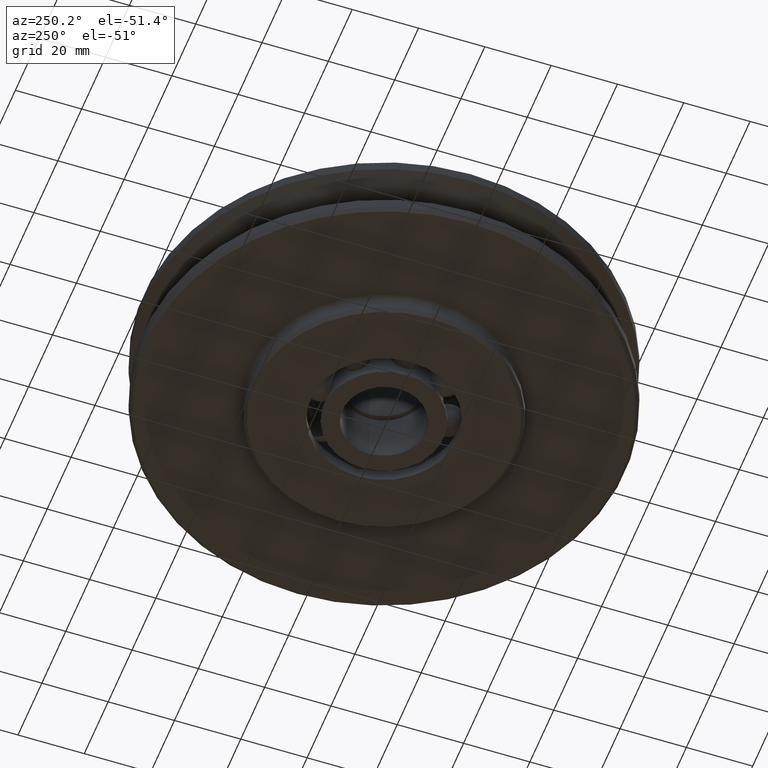
[diagram: clean part render]
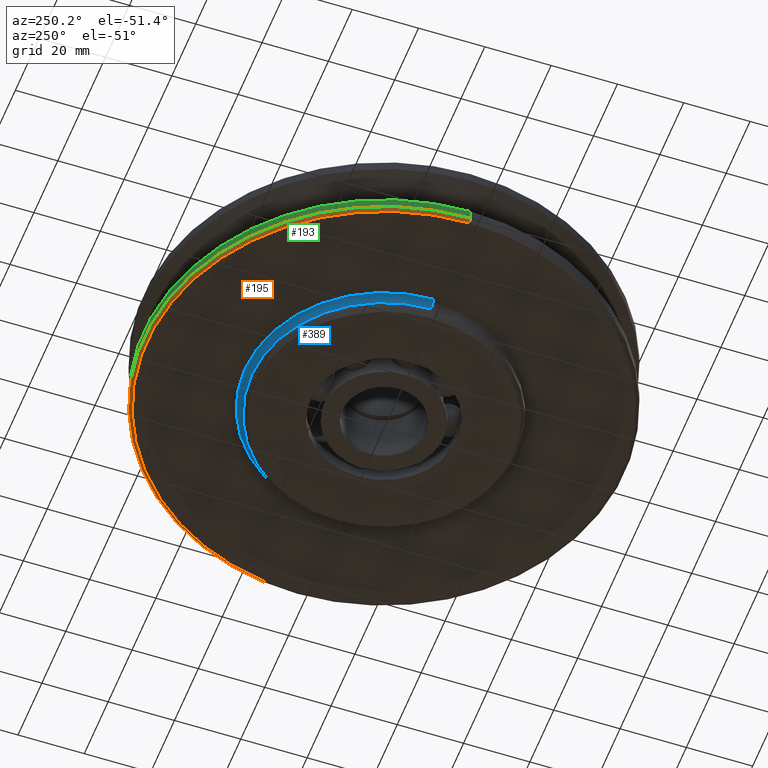
[diagram: same view with three faces highlighted in distinct colors, each labeled with its STEP entity id]
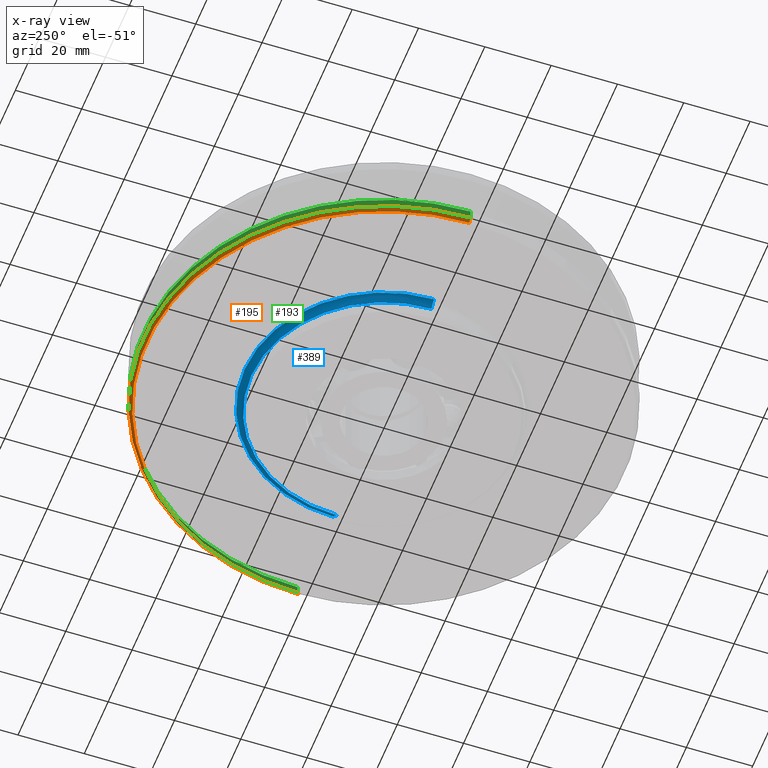
[diagram: x-ray of the same camera — body ghosted, the three highlighted faces saturated]
A machine part, auxiliary view with three faces highlighted in distinct colors.
The next image is the same camera in x-ray (body ghosted, the three faces saturated) — at least one of them is partly hidden behind the body in this view.
Their STEP definitions:

[orange] entity #195 — the highlighted conical surface has half-angle 45 deg.
#195=ADVANCED_FACE('',(#487),#488,.T.);
#487=FACE_OUTER_BOUND('',#897,.T.);
#488=CONICAL_SURFACE('',#898,72.0,0.785398163397448);
#897=EDGE_LOOP('',(#1411,#1412,#1413,#1414));
#898=AXIS2_PLACEMENT_3D('',#1415,#1416,#1417);
#1411=ORIENTED_EDGE('',*,*,#2669,.F.);
#1412=ORIENTED_EDGE('',*,*,#2670,.T.);
#1413=ORIENTED_EDGE('',*,*,#2671,.F.);
#1414=ORIENTED_EDGE('',*,*,#2666,.F.);
#1415=CARTESIAN_POINT('',(0.0,0.0,-10.5));
#1416=DIRECTION('',(-0.0,-0.0,1.0));
#1417=DIRECTION('',(1.0,0.0,0.0));
#2666=EDGE_CURVE('',#3278,#3280,#3281,.T.);
#2669=EDGE_CURVE('',#3284,#3278,#3285,.T.);
#2670=EDGE_CURVE('',#3284,#3286,#3287,.T.);
#2671=EDGE_CURVE('',#3280,#3286,#3288,.T.);
#3278=VERTEX_POINT('',#4803);
#3280=VERTEX_POINT('',#4806);
#3281=CIRCLE('',#4807,72.5);
#3284=VERTEX_POINT('',#4811);
#3285=LINE('',#4812,#4813);
#3286=VERTEX_POINT('',#4814);
#3287=CIRCLE('',#4815,71.5);
#3288=LINE('',#4816,#4817);
#4803=CARTESIAN_POINT('',(72.5,0.0,-10.0));
#4806=CARTESIAN_POINT('',(-72.5,8.87868929381831E-015,-10.0));
#4807=AXIS2_PLACEMENT_3D('',#7975,#7976,#7977);
#4811=CARTESIAN_POINT('',(71.5,0.0,-11.0));
#4812=CARTESIAN_POINT('',(72.0,-8.81745695386094E-015,-10.5));
#4813=VECTOR('',#7979,1.0);
#4814=CARTESIAN_POINT('',(-71.5,8.75622461390357E-015,-11.0));
#4815=AXIS2_PLACEMENT_3D('',#7980,#7981,#7982);
#4816=CARTESIAN_POINT('',(-72.0,8.81745695386094E-015,-10.5));
#4817=VECTOR('',#7983,1.0);
#7975=CARTESIAN_POINT('',(0.0,0.0,-10.0));
#7976=DIRECTION('',(0.0,0.0,1.0));
#7977=DIRECTION('',(1.0,0.0,0.0));
#7979=DIRECTION('',(0.707106781186547,-8.65956056235493E-017,0.707106781186548));
#7980=CARTESIAN_POINT('',(0.0,0.0,-11.0));
#7981=DIRECTION('',(0.0,0.0,1.0));
#7982=DIRECTION('',(1.0,0.0,0.0));
#7983=DIRECTION('',(0.707106781186547,-8.65956056235493E-017,-0.707106781186548));

[blue] entity #389 — the highlighted toroidal blend (fillet) surface has major radius 42 mm and minor (blend) radius 2 mm.
#389=ADVANCED_FACE('',(#801),#802,.F.);
#801=FACE_OUTER_BOUND('',#1211,.T.);
#802=TOROIDAL_SURFACE('',#1212,42.0,2.0);
#1211=EDGE_LOOP('',(#2507,#2508,#2509,#2510));
#1212=AXIS2_PLACEMENT_3D('',#2511,#2512,#2513);
#2507=ORIENTED_EDGE('',*,*,#2673,.T.);
#2508=ORIENTED_EDGE('',*,*,#3091,.F.);
#2509=ORIENTED_EDGE('',*,*,#2675,.T.);
#2510=ORIENTED_EDGE('',*,*,#2681,.T.);
#2511=CARTESIAN_POINT('',(0.0,0.0,-13.0));
#2512=DIRECTION('',(0.0,0.0,1.0));
#2513=DIRECTION('',(1.0,0.0,0.0));
#2673=EDGE_CURVE('',#3290,#3291,#3292,.T.);
#2675=EDGE_CURVE('',#3295,#3293,#3296,.T.);
#2681=EDGE_CURVE('',#3293,#3290,#3304,.T.);
#3091=EDGE_CURVE('',#3295,#3291,#3908,.T.);
#3290=VERTEX_POINT('',#4819);
#3291=VERTEX_POINT('',#4820);
#3292=CIRCLE('',#4821,2.0);
#3293=VERTEX_POINT('',#4822);
#3295=VERTEX_POINT('',#4824);
#3296=CIRCLE('',#4825,2.0);
#3304=CIRCLE('',#4835,40.0);
#3908=CIRCLE('',#7827,42.0);
#4819=CARTESIAN_POINT('',(-40.0,4.89858719658941E-015,-13.0));
#4820=CARTESIAN_POINT('',(-42.0,5.14351655641888E-015,-11.0));
#4821=AXIS2_PLACEMENT_3D('',#7984,#7985,#7986);
#4822=CARTESIAN_POINT('',(40.0,0.0,-13.0));
#4824=CARTESIAN_POINT('',(42.0,0.0,-11.0));
#4825=AXIS2_PLACEMENT_3D('',#7990,#7991,#7992);
#4835=AXIS2_PLACEMENT_3D('',#8001,#8002,#8003);
#7827=AXIS2_PLACEMENT_3D('',#8442,#8443,#8444);
#7984=CARTESIAN_POINT('',(-42.0,5.14351655641888E-015,-13.0));
#7985=DIRECTION('',(-1.22464679914735E-016,-1.0,0.0));
#7986=DIRECTION('',(-1.0,1.22464679914735E-016,-0.0));
#7990=CARTESIAN_POINT('',(42.0,-5.14351655641888E-015,-13.0));
#7991=DIRECTION('',(-1.22464679914735E-016,-1.0,0.0));
#7992=DIRECTION('',(1.0,-1.22464679914735E-016,0.0));
#8001=CARTESIAN_POINT('',(0.0,0.0,-13.0));
#8002=DIRECTION('',(0.0,0.0,1.0));
#8003=DIRECTION('',(1.0,0.0,0.0));
#8442=CARTESIAN_POINT('',(0.0,0.0,-11.0));
#8443=DIRECTION('',(0.0,0.0,1.0));
#8444=DIRECTION('',(1.0,0.0,0.0));

[green] entity #193 — the highlighted cylindrical surface (partial cylindrical patch) has radius 72.5 mm, axis along (0, 0, 1).
#193=ADVANCED_FACE('',(#484),#485,.T.);
#484=FACE_OUTER_BOUND('',#894,.T.);
#485=CYLINDRICAL_SURFACE('',#895,72.5);
#894=EDGE_LOOP('',(#1403,#1404,#1405,#1406));
#895=AXIS2_PLACEMENT_3D('',#1407,#1408,#1409);
#1403=ORIENTED_EDGE('',*,*,#2665,.F.);
#1404=ORIENTED_EDGE('',*,*,#2666,.T.);
#1405=ORIENTED_EDGE('',*,*,#2667,.F.);
#1406=ORIENTED_EDGE('',*,*,#2661,.F.);
#1407=CARTESIAN_POINT('',(0.0,0.0,-8.490876));
#1408=DIRECTION('',(0.0,0.0,1.0));
#1409=DIRECTION('',(1.0,0.0,0.0));
#2661=EDGE_CURVE('',#3271,#3273,#3274,.T.);
#2665=EDGE_CURVE('',#3278,#3271,#3279,.T.);
#2666=EDGE_CURVE('',#3278,#3280,#3281,.T.);
#2667=EDGE_CURVE('',#3273,#3280,#3282,.T.);
#3271=VERTEX_POINT('',#4794);
#3273=VERTEX_POINT('',#4797);
#3274=CIRCLE('',#4798,72.5);
#3278=VERTEX_POINT('',#4803);
#3279=LINE('',#4804,#4805);
#3280=VERTEX_POINT('',#4806);
#3281=CIRCLE('',#4807,72.5);
#3282=LINE('',#4808,#4809);
#4794=CARTESIAN_POINT('',(72.5,0.0,-6.981752));
#4797=CARTESIAN_POINT('',(-72.5,8.87868929381831E-015,-6.981752));
#4798=AXIS2_PLACEMENT_3D('',#7967,#7968,#7969);
#4803=CARTESIAN_POINT('',(72.5,0.0,-10.0));
#4804=CARTESIAN_POINT('',(72.5,-8.87868929381831E-015,-8.490876));
#4805=VECTOR('',#7974,1.0);
#4806=CARTESIAN_POINT('',(-72.5,8.87868929381831E-015,-10.0));
#4807=AXIS2_PLACEMENT_3D('',#7975,#7976,#7977);
#4808=CARTESIAN_POINT('',(-72.5,8.87868929381831E-015,-8.490876));
#4809=VECTOR('',#7978,1.0);
#7967=CARTESIAN_POINT('',(0.0,0.0,-6.981752));
#7968=DIRECTION('',(0.0,0.0,1.0));
#7969=DIRECTION('',(1.0,0.0,0.0));
#7974=DIRECTION('',(0.0,0.0,1.0));
#7975=CARTESIAN_POINT('',(0.0,0.0,-10.0));
#7976=DIRECTION('',(0.0,0.0,1.0));
#7977=DIRECTION('',(1.0,0.0,0.0));
#7978=DIRECTION('',(-0.0,-0.0,-1.0));